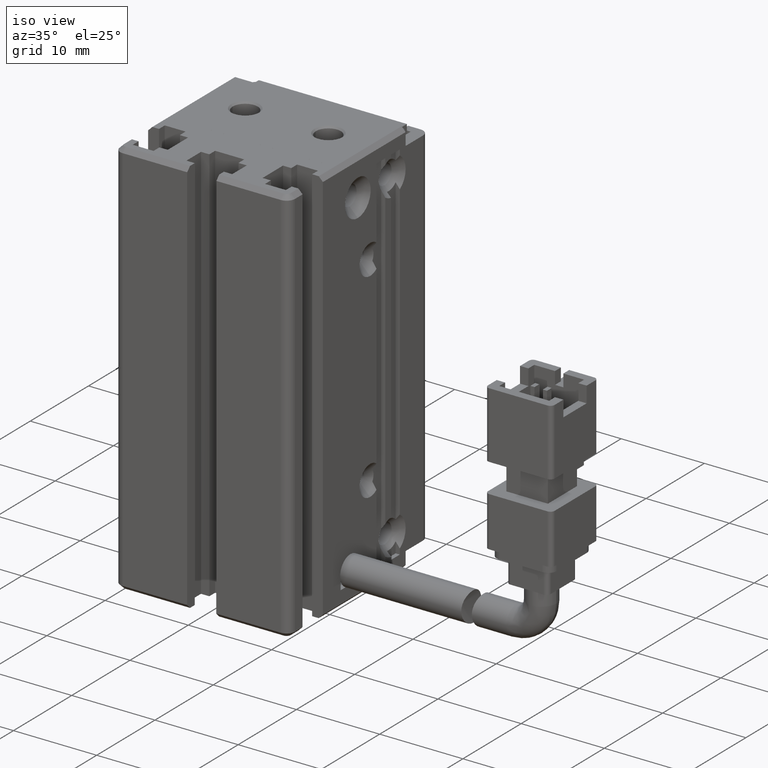
[diagram: clean part render]
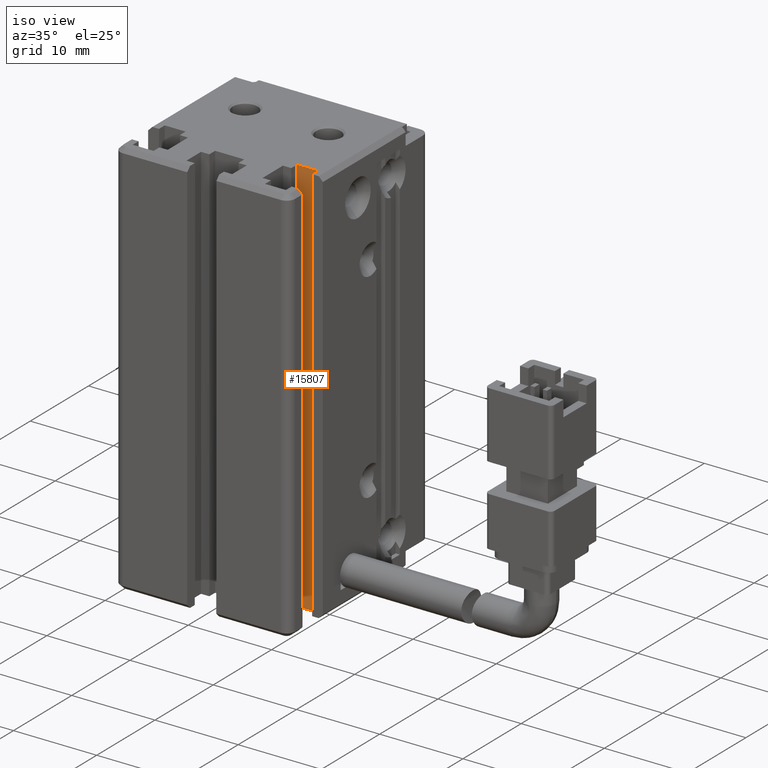
[diagram: same view with one face highlighted and labeled with its STEP entity id]
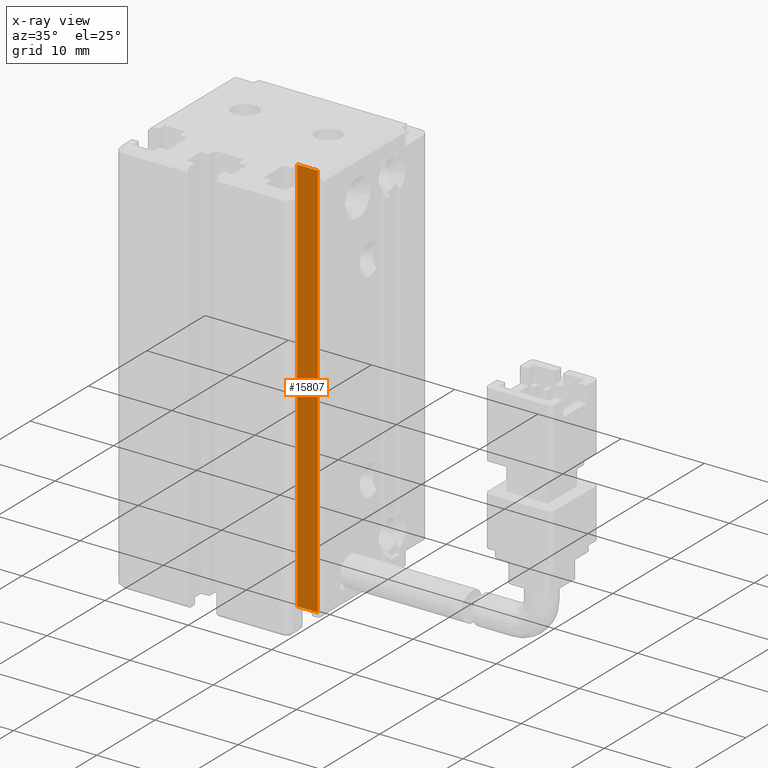
[diagram: x-ray of the same camera — body ghosted, the highlighted face saturated]
A machine part, iso view. The second image highlights one B-rep face of the part: STEP entity #15807.
The next image is the same camera in x-ray: the body ghosted, the highlighted face saturated — about 0% of this face is hidden behind the body in this view.
In plain terms, the highlighted planar face has unit normal (0, -1, 0).
Its self-contained STEP definition (entity closure, byte-faithful):
#48 = ORIENTED_EDGE ( 'NONE', *, *, #36736, .T. ) ;
#79 = DIRECTION ( 'NONE',  ( 1.000000000000000000, 0.0000000000000000000, 0.0000000000000000000 ) ) ;
#153 = VECTOR ( 'NONE', #6653, 1000.000000000000000 ) ;
#992 = VERTEX_POINT ( 'NONE', #21769 ) ;
#1646 = VERTEX_POINT ( 'NONE', #19294 ) ;
#2391 = AXIS2_PLACEMENT_3D ( 'NONE', #28533, #16622, #19662 ) ;
#2920 = VERTEX_POINT ( 'NONE', #38331 ) ;
#5703 = DIRECTION ( 'NONE',  ( 0.0000000000000000000, -0.0000000000000000000, -1.000000000000000000 ) ) ;
#6653 = DIRECTION ( 'NONE',  ( 1.000000000000000000, 0.0000000000000000000, 0.0000000000000000000 ) ) ;
#7813 = ORIENTED_EDGE ( 'NONE', *, *, #30358, .T. ) ;
#8571 = CARTESIAN_POINT ( 'NONE',  ( 47.62537974683541400, 17.79073232304837400, -91.00000000000000000 ) ) ;
#8704 = EDGE_CURVE ( 'NONE', #8734, #1646, #19794, .T. ) ;
#8734 = VERTEX_POINT ( 'NONE', #26940 ) ;
#11803 = ORIENTED_EDGE ( 'NONE', *, *, #30686, .T. ) ;
#12564 = LINE ( 'NONE', #29702, #25650 ) ;
#12702 = LINE ( 'NONE', #30596, #153 ) ;
#15172 = FACE_OUTER_BOUND ( 'NONE', #30461, .T. ) ;
#15648 = DIRECTION ( 'NONE',  ( -0.0000000000000000000, 0.0000000000000000000, 1.000000000000000000 ) ) ;
#15807 = ADVANCED_FACE ( 'NONE', ( #15172 ), #38021, .T. ) ;
#16622 = DIRECTION ( 'NONE',  ( 0.0000000000000000000, -1.000000000000000000, 0.0000000000000000000 ) ) ;
#17007 = ORIENTED_EDGE ( 'NONE', *, *, #8704, .F. ) ;
#19294 = CARTESIAN_POINT ( 'NONE',  ( 50.12537974683542100, 17.79073232304837400, -91.00000000000000000 ) ) ;
#19662 = DIRECTION ( 'NONE',  ( 0.0000000000000000000, -0.0000000000000000000, -1.000000000000000000 ) ) ;
#19794 = LINE ( 'NONE', #23645, #24444 ) ;
#21769 = CARTESIAN_POINT ( 'NONE',  ( 47.62537974683541400, 17.79073232304837400, -139.0000000000000000 ) ) ;
#23645 = CARTESIAN_POINT ( 'NONE',  ( 40.92537974683542500, 17.79073232304837400, -91.00000000000000000 ) ) ;
#24444 = VECTOR ( 'NONE', #79, 1000.000000000000000 ) ;
#25650 = VECTOR ( 'NONE', #15648, 1000.000000000000000 ) ;
#26940 = CARTESIAN_POINT ( 'NONE',  ( 47.62537974683541400, 17.79073232304837400, -91.00000000000000000 ) ) ;
#28533 = CARTESIAN_POINT ( 'NONE',  ( 40.92537974683542500, 17.79073232304837400, -91.00000000000000000 ) ) ;
#29702 = CARTESIAN_POINT ( 'NONE',  ( 50.12537974683542100, 17.79073232304837400, -91.00000000000000000 ) ) ;
#29864 = LINE ( 'NONE', #8571, #35968 ) ;
#30358 = EDGE_CURVE ( 'NONE', #2920, #1646, #12564, .T. ) ;
#30461 = EDGE_LOOP ( 'NONE', ( #17007, #11803, #48, #7813 ) ) ;
#30596 = CARTESIAN_POINT ( 'NONE',  ( 40.92537974683542500, 17.79073232304837400, -139.0000000000000000 ) ) ;
#30686 = EDGE_CURVE ( 'NONE', #8734, #992, #29864, .T. ) ;
#35968 = VECTOR ( 'NONE', #5703, 1000.000000000000000 ) ;
#36736 = EDGE_CURVE ( 'NONE', #992, #2920, #12702, .T. ) ;
#38021 = PLANE ( 'NONE',  #2391 ) ;
#38331 = CARTESIAN_POINT ( 'NONE',  ( 50.12537974683542100, 17.79073232304837400, -139.0000000000000000 ) ) ;